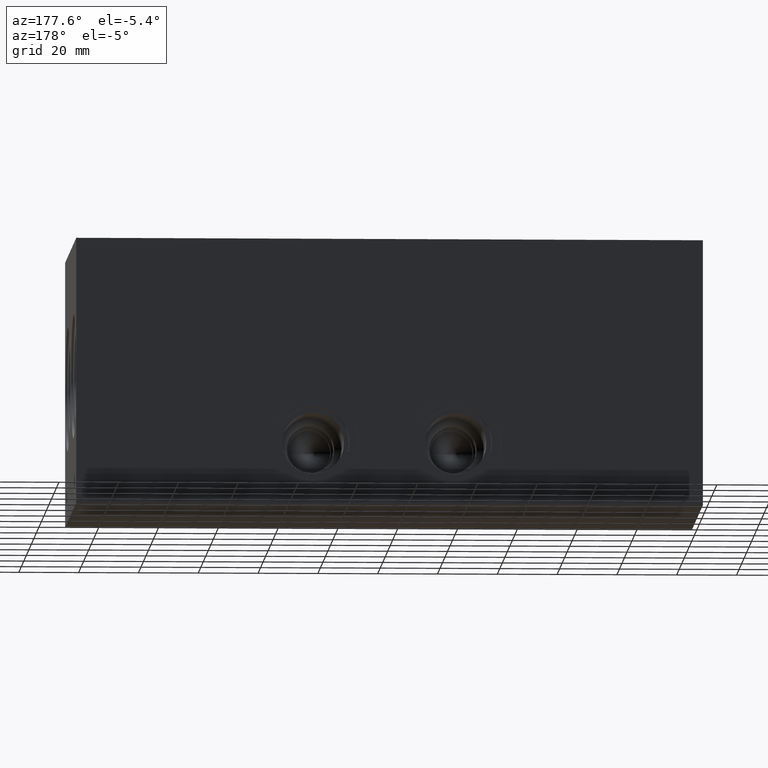
[diagram: clean part render]
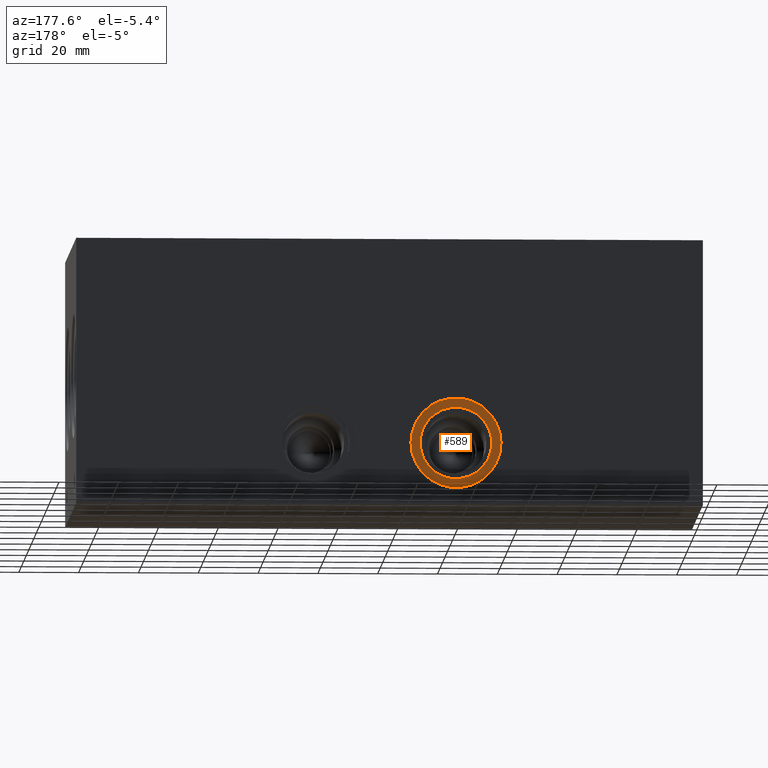
[diagram: same view with one face highlighted and labeled with its STEP entity id]
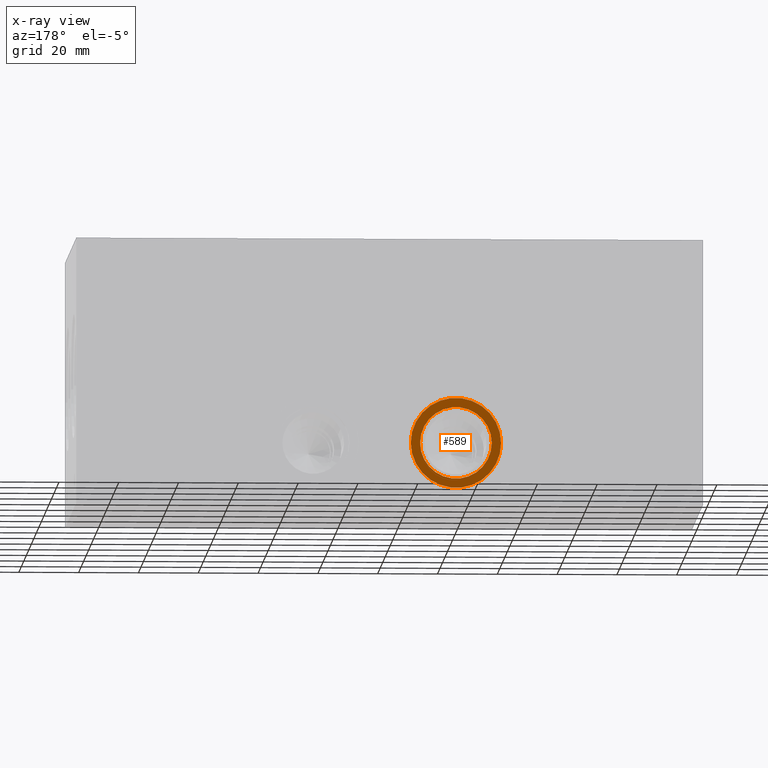
[diagram: x-ray of the same camera — body ghosted, the highlighted face saturated]
A machine part, auxiliary view. The second image highlights one B-rep face of the part: STEP entity #589.
The next image is the same camera in x-ray: the body ghosted, the highlighted face saturated — about 0% of this face is hidden behind the body in this view.
In plain terms, the highlighted planar face has unit normal (0, -1, 0).
Its self-contained STEP definition (entity closure, byte-faithful):
#555=CARTESIAN_POINT('',(94.551500000000019,88.112600000000015,20.650200000000002));
#556=VERTEX_POINT('',#555);
#557=CARTESIAN_POINT('',(82.550000000000011,88.112600000000015,20.650200000000002));
#558=DIRECTION('',(0.0,1.0,0.0));
#559=DIRECTION('',(1.0,0.0,0.0));
#560=AXIS2_PLACEMENT_3D('',#557,#558,#559);
#561=CIRCLE('',#560,12.001500000000007);
#562=EDGE_CURVE('',#556,#556,#561,.T.);
#570=CARTESIAN_POINT('',(96.094549999999998,88.112600000000015,20.650200000000002));
#571=DIRECTION('',(0.0,-1.0,0.0));
#572=DIRECTION('',(0.0,0.0,-1.0));
#573=AXIS2_PLACEMENT_3D('',#570,#571,#572);
#574=PLANE('',#573);
#575=CARTESIAN_POINT('',(97.63760000000002,88.112600000000015,20.650200000000002));
#576=VERTEX_POINT('',#575);
#577=CARTESIAN_POINT('',(82.550000000000011,88.112600000000015,20.650200000000002));
#578=DIRECTION('',(0.0,1.0,0.0));
#579=DIRECTION('',(1.0,0.0,0.0));
#580=AXIS2_PLACEMENT_3D('',#577,#578,#579);
#581=CIRCLE('',#580,15.087600000000005);
#582=EDGE_CURVE('',#576,#576,#581,.T.);
#583=ORIENTED_EDGE('',*,*,#582,.T.);
#584=EDGE_LOOP('',(#583));
#585=FACE_OUTER_BOUND('',#584,.T.);
#586=ORIENTED_EDGE('',*,*,#562,.F.);
#587=EDGE_LOOP('',(#586));
#588=FACE_BOUND('',#587,.T.);
#589=ADVANCED_FACE('',(#585,#588),#574,.F.);